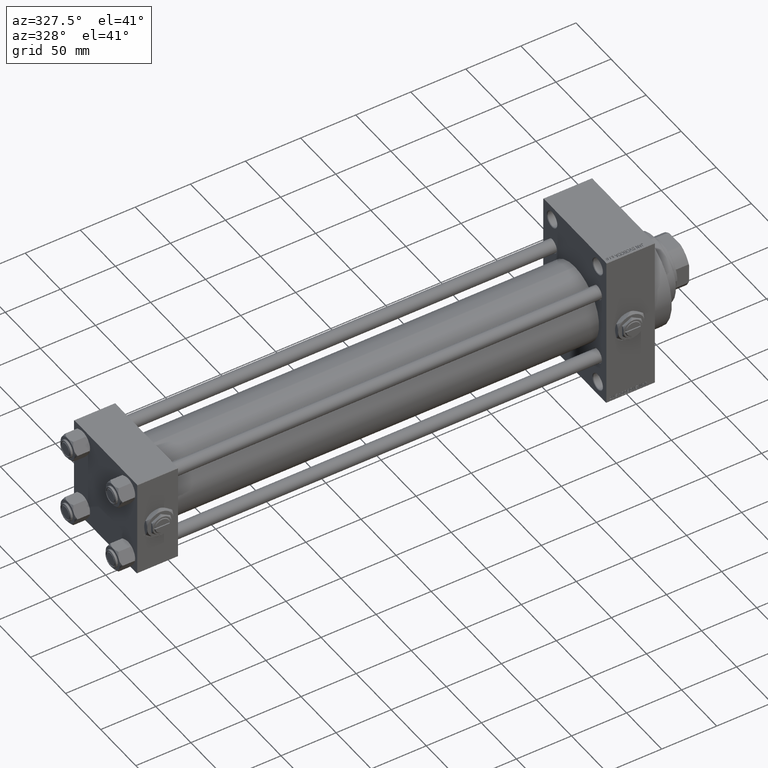
[diagram: clean part render]
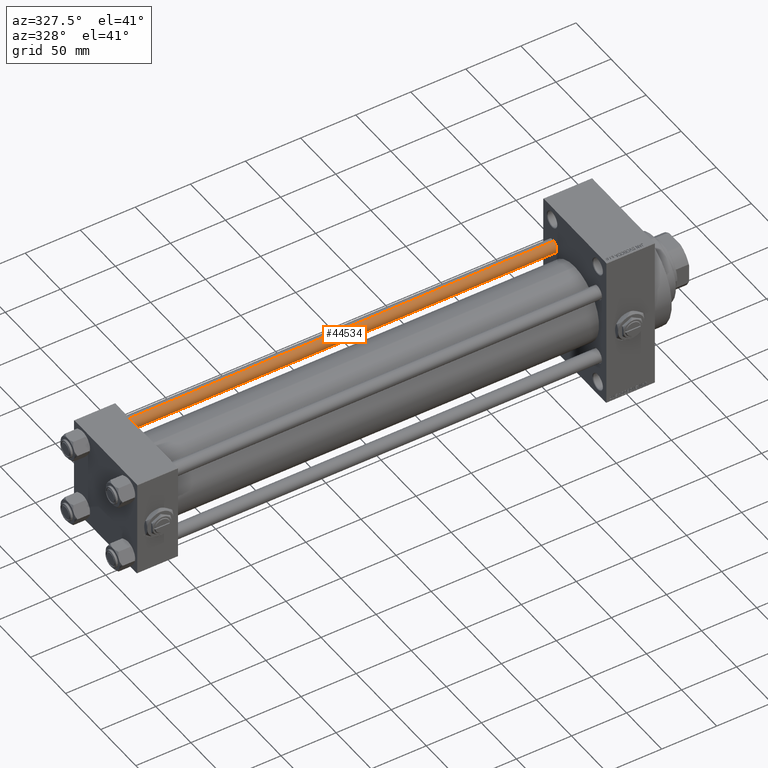
[diagram: same view with one face highlighted and labeled with its STEP entity id]
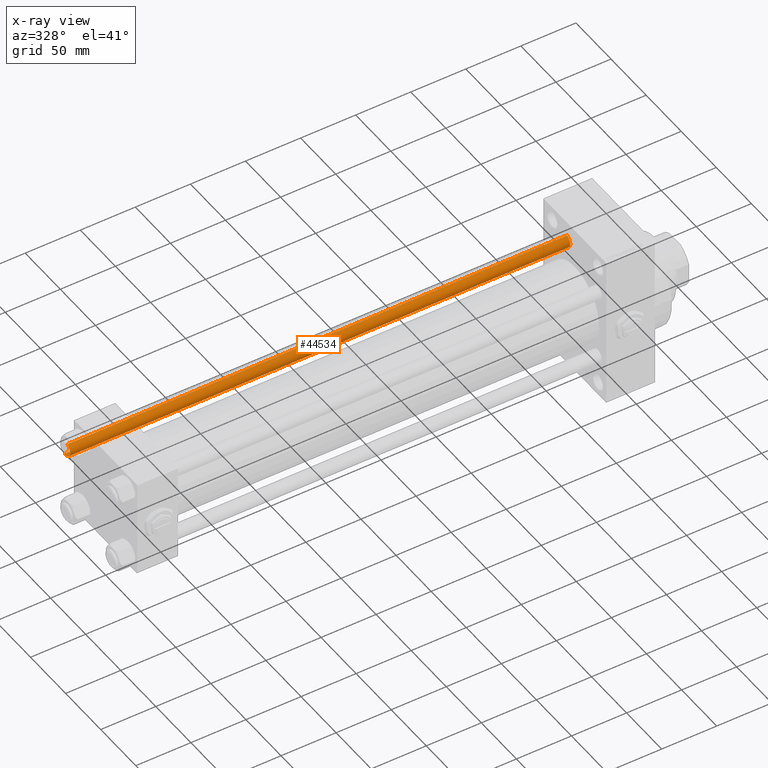
[diagram: x-ray of the same camera — body ghosted, the highlighted face saturated]
A machine part, auxiliary view. The second image highlights one B-rep face of the part: STEP entity #44534.
The next image is the same camera in x-ray: the body ghosted, the highlighted face saturated — about 0% of this face is hidden behind the body in this view.
In plain terms, the highlighted cylindrical surface (edge-blend (fillet) strip) has radius 6 mm, axis along (-1, -0, 0).
Its self-contained STEP definition (entity closure, byte-faithful):
#1390 = DIRECTION ( 'NONE',  ( 0.000000000000000000, 0.000000000000000000, -1.000000000000000000 ) ) ;
#2845 = LINE ( 'NONE', #18007, #40410 ) ;
#3434 = EDGE_CURVE ( 'NONE', #12129, #25330, #28575, .T. ) ;
#4436 = EDGE_LOOP ( 'NONE', ( #45103, #42281, #41635, #10783 ) ) ;
#5583 = AXIS2_PLACEMENT_3D ( 'NONE', #7605, #33764, #14834 ) ;
#7605 = CARTESIAN_POINT ( 'NONE',  ( 0.000000000000000000, 0.000000000000000000, 455.0000000000000000 ) ) ;
#8396 = DIRECTION ( 'NONE',  ( -0.000000000000000000, -0.000000000000000000, 1.000000000000000000 ) ) ;
#8768 = AXIS2_PLACEMENT_3D ( 'NONE', #34534, #1390, #23535 ) ;
#9382 = EDGE_CURVE ( 'NONE', #12129, #24971, #28630, .T. ) ;
#10209 = CARTESIAN_POINT ( 'NONE',  ( 0.000000000000000000, 0.000000000000000000, 0.5000000000002224887 ) ) ;
#10583 = CARTESIAN_POINT ( 'NONE',  ( 6.000000000000000888, 7.347880794884119736E-16, 454.5000000000002842 ) ) ;
#10783 = ORIENTED_EDGE ( 'NONE', *, *, #26549, .T. ) ;
#12129 = VERTEX_POINT ( 'NONE', #10583 ) ;
#14524 = DIRECTION ( 'NONE',  ( -0.000000000000000000, -0.000000000000000000, -1.000000000000000000 ) ) ;
#14834 = DIRECTION ( 'NONE',  ( -1.000000000000000000, 0.000000000000000000, 0.000000000000000000 ) ) ;
#17385 = CARTESIAN_POINT ( 'NONE',  ( 6.000000000000000888, 7.347880794884119736E-16, 455.0000000000000000 ) ) ;
#17639 = DIRECTION ( 'NONE',  ( -0.000000000000000000, -0.000000000000000000, -1.000000000000000000 ) ) ;
#18007 = CARTESIAN_POINT ( 'NONE',  ( -6.000000000000000888, 0.000000000000000000, 455.0000000000000000 ) ) ;
#20577 = VERTEX_POINT ( 'NONE', #40536 ) ;
#23535 = DIRECTION ( 'NONE',  ( 1.000000000000000000, 0.000000000000000000, 0.000000000000000000 ) ) ;
#23789 = EDGE_CURVE ( 'NONE', #24971, #20577, #2845, .T. ) ;
#24971 = VERTEX_POINT ( 'NONE', #33150 ) ;
#25330 = VERTEX_POINT ( 'NONE', #32337 ) ;
#26549 = EDGE_CURVE ( 'NONE', #20577, #25330, #34115, .T. ) ;
#28575 = LINE ( 'NONE', #17385, #49201 ) ;
#28630 = CIRCLE ( 'NONE', #8768, 6.000000000000000888 ) ;
#30269 = FACE_OUTER_BOUND ( 'NONE', #4436, .T. ) ;
#32337 = CARTESIAN_POINT ( 'NONE',  ( 6.000000000000000888, 7.347880794884119736E-16, 0.5000000000002224887 ) ) ;
#33150 = CARTESIAN_POINT ( 'NONE',  ( -6.000000000000000888, 0.000000000000000000, 454.5000000000002842 ) ) ;
#33764 = DIRECTION ( 'NONE',  ( -0.000000000000000000, -0.000000000000000000, -1.000000000000000000 ) ) ;
#34092 = DIRECTION ( 'NONE',  ( 1.000000000000000000, 0.000000000000000000, 0.000000000000000000 ) ) ;
#34115 = CIRCLE ( 'NONE', #40483, 6.000000000000000888 ) ;
#34534 = CARTESIAN_POINT ( 'NONE',  ( 0.000000000000000000, 0.000000000000000000, 454.5000000000002842 ) ) ;
#40410 = VECTOR ( 'NONE', #14524, 1000.000000000000000 ) ;
#40483 = AXIS2_PLACEMENT_3D ( 'NONE', #10209, #8396, #34092 ) ;
#40536 = CARTESIAN_POINT ( 'NONE',  ( -6.000000000000000888, 0.000000000000000000, 0.5000000000002224887 ) ) ;
#41262 = CYLINDRICAL_SURFACE ( 'NONE', #5583, 6.000000000000000888 ) ;
#41635 = ORIENTED_EDGE ( 'NONE', *, *, #23789, .T. ) ;
#42281 = ORIENTED_EDGE ( 'NONE', *, *, #9382, .T. ) ;
#44534 = ADVANCED_FACE ( 'NONE', ( #30269 ), #41262, .T. ) ;
#45103 = ORIENTED_EDGE ( 'NONE', *, *, #3434, .F. ) ;
#49201 = VECTOR ( 'NONE', #17639, 1000.000000000000000 ) ;